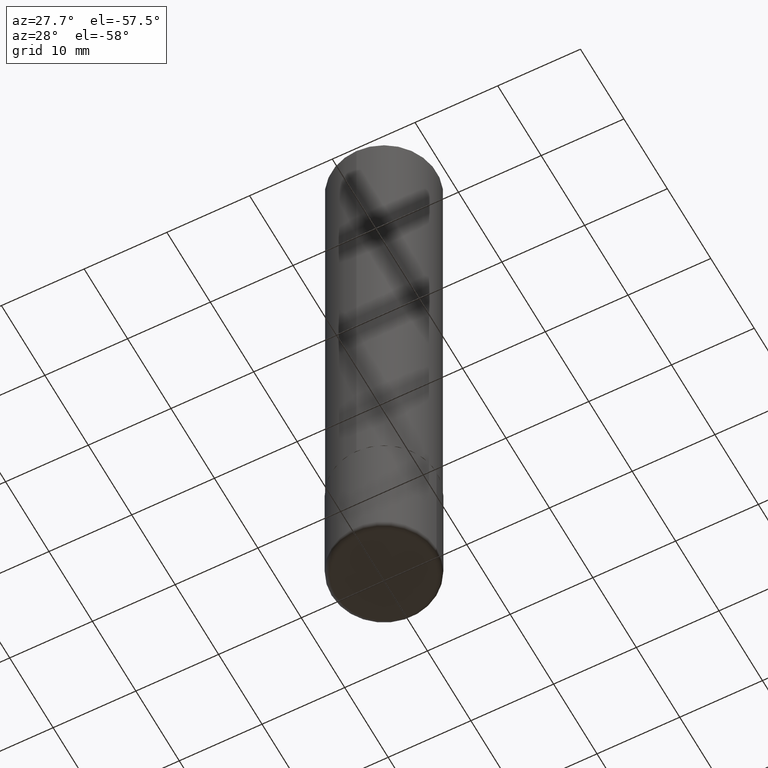
[diagram: clean part render]
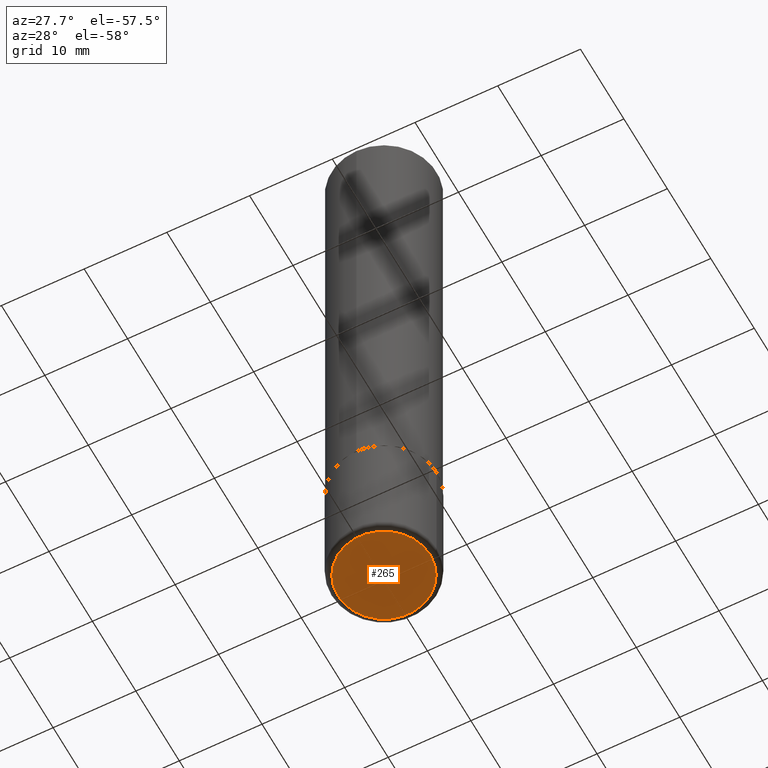
[diagram: same view with one face highlighted and labeled with its STEP entity id]
A machine part, auxiliary view. The second image highlights one B-rep face of the part: STEP entity #265.
In plain terms, the highlighted planar face has unit normal (0, -0, -1).
Its self-contained STEP definition (entity closure, byte-faithful):
#13 = AXIS2_PLACEMENT_3D ( 'NONE', #388, #104, #251 ) ;
#44 = EDGE_LOOP ( 'NONE', ( #339, #47 ) ) ;
#46 = EDGE_CURVE ( 'NONE', #163, #184, #53, .T. ) ;
#47 = ORIENTED_EDGE ( 'NONE', *, *, #175, .F. ) ;
#53 = CIRCLE ( 'NONE', #212, 0.2200000000000000011 ) ;
#56 = CARTESIAN_POINT ( 'NONE',  ( 7.336406418555408669E-29, -1.047444401652943478E-14, -2.999999999999999556 ) ) ;
#57 = DIRECTION ( 'NONE',  ( -2.445468806185136597E-29, 3.491481338843145583E-15, 1.000000000000000000 ) ) ;
#101 = CARTESIAN_POINT ( 'NONE',  ( 0.2200000000000000011, -1.201069580562041471E-14, -2.999999999999999556 ) ) ;
#104 = DIRECTION ( 'NONE',  ( 2.438088387897960049E-29, -3.491481338843145188E-15, -1.000000000000000000 ) ) ;
#158 = DIRECTION ( 'NONE',  ( 1.000000000000000000, -6.982962677686270655E-15, 0.000000000000000000 ) ) ;
#163 = VERTEX_POINT ( 'NONE', #101 ) ;
#165 = PLANE ( 'NONE',  #13 ) ;
#169 = DIRECTION ( 'NONE',  ( 1.000000000000000000, -6.982962677686270655E-15, 0.000000000000000000 ) ) ;
#175 = EDGE_CURVE ( 'NONE', #184, #163, #406, .T. ) ;
#184 = VERTEX_POINT ( 'NONE', #262 ) ;
#193 = FACE_OUTER_BOUND ( 'NONE', #44, .T. ) ;
#212 = AXIS2_PLACEMENT_3D ( 'NONE', #353, #57, #169 ) ;
#227 = DIRECTION ( 'NONE',  ( -2.445468806185136597E-29, 3.491481338843145583E-15, 1.000000000000000000 ) ) ;
#251 = DIRECTION ( 'NONE',  ( -1.000000000000000000, 6.982962677686265922E-15, -4.876176775795935793E-29 ) ) ;
#262 = CARTESIAN_POINT ( 'NONE',  ( -0.2200000000000000011, -8.752296367410555115E-15, -2.999999999999999556 ) ) ;
#265 = ADVANCED_FACE ( 'NONE', ( #193 ), #165, .T. ) ;
#287 = AXIS2_PLACEMENT_3D ( 'NONE', #56, #227, #158 ) ;
#339 = ORIENTED_EDGE ( 'NONE', *, *, #46, .F. ) ;
#353 = CARTESIAN_POINT ( 'NONE',  ( 7.336406418555408669E-29, -1.047444401652943478E-14, -2.999999999999999556 ) ) ;
#388 = CARTESIAN_POINT ( 'NONE',  ( 1.253905894061077399E-28, -3.023949488354168584E-15, -2.999999999999999556 ) ) ;
#406 = CIRCLE ( 'NONE', #287, 0.2200000000000000011 ) ;